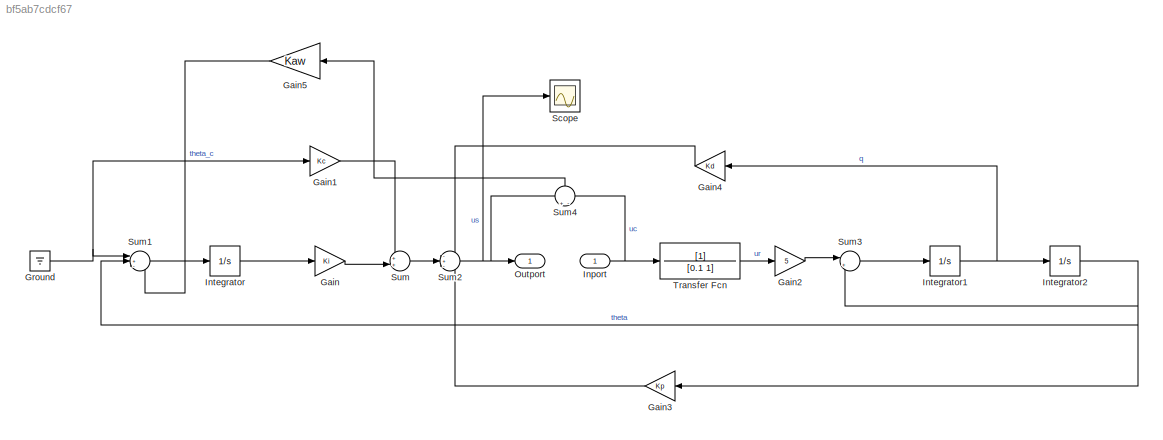
MODEL slx_bf5ab7cdcf67
KIND model
CONFIG AbsTol = auto
CONFIG EnableMultiTasking = off
CONFIG FixedStep = auto
CONFIG MaxStep = auto
CONFIG MinStep = auto
CONFIG RelTol = 1e-3
CONFIG SampleTimeConstraint = Unconstrained
CONFIG SolverName = VariableStepAuto
CONFIG StartTime = 0.0
CONFIG StopTime = 100
BLOCK [Gain] Gain
  Gain = Ki
BLOCK [Gain] Gain1
  Gain = Kc
BLOCK [Gain] Gain2
  Gain = 5
BLOCK [Gain] Gain3
  Gain = Kp
BLOCK [Gain] Gain4
  Gain = Kd
BLOCK [Gain] Gain5
  Gain = Kaw
BLOCK [Ground] Ground
BLOCK [Inport] Inport
BLOCK [Integrator] Integrator
  Ports = [1, 1]
BLOCK [Integrator] Integrator1
  Ports = [1, 1]
BLOCK [Integrator] Integrator2
  Ports = [1, 1]
BLOCK [Outport] Outport
BLOCK [Scope] Scope
  Floating = off
  NumInputPorts = 1
  Ports = [1]
  ScopeSpecificationString = Simulink.scopes.TimeScopeBlockCfg('CurrentConfiguration', extmgr.ConfigurationSet(extmgr.Configuration('Core','General UI',true),extmgr.Configuration('Core','Source UI',true),extmgr.Configuration('Sources','WiredSimulink',true),extmgr.Configuration('Visuals','Time Domain',true,'SerializedDisplays',{struct('MinYLimReal','-1.00000','MaxYLimReal','1.00000','YLabelReal','','MinYLimMag','0.00000','MaxY...<+1390ch>
BLOCK [Sum] Sum
  Inputs = ++|
  Ports = [2, 1]
BLOCK [Sum] Sum1
  Inputs = |+--
  Ports = [3, 1]
BLOCK [Sum] Sum2
  Inputs = -+-
  Ports = [3, 1]
BLOCK [Sum] Sum3
  Inputs = |++
  Ports = [2, 1]
BLOCK [Sum] Sum4
  Inputs = +-
  NameLocation = right
  Ports = [2, 1]
BLOCK [TransferFcn] Transfer Fcn
  Denominator = [0.1 1]
LINE Gain1:1 -> Sum:1
LINE Gain2:1 -> Sum3:1
LINE Gain3:1 -> Sum2:3
LINE Gain4:1 -> Sum2:1
LINE Gain5:1 -> Sum1:3
LINE Gain:1 -> Sum:2
NET Ground:1 -> Gain1:1, Sum1:1
NET Inport:1 -> Sum4:2, Transfer Fcn:1
NET Integrator1:1 -> Gain4:1, Integrator2:1
NET Integrator2:1 -> Gain3:1, Sum1:2, Sum3:2
LINE Integrator:1 -> Gain:1
LINE Sum1:1 -> Integrator:1
NET Sum2:1 -> Outport:1, Scope:1, Sum4:1
LINE Sum3:1 -> Integrator1:1
LINE Sum4:1 -> Gain5:1
LINE Sum:1 -> Sum2:2
LINE Transfer Fcn:1 -> Gain2:1
note: NET lines group one-source signal fan-out (src -> all destinations, sorted); 1:1 wires keep LINE
